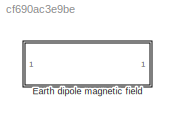
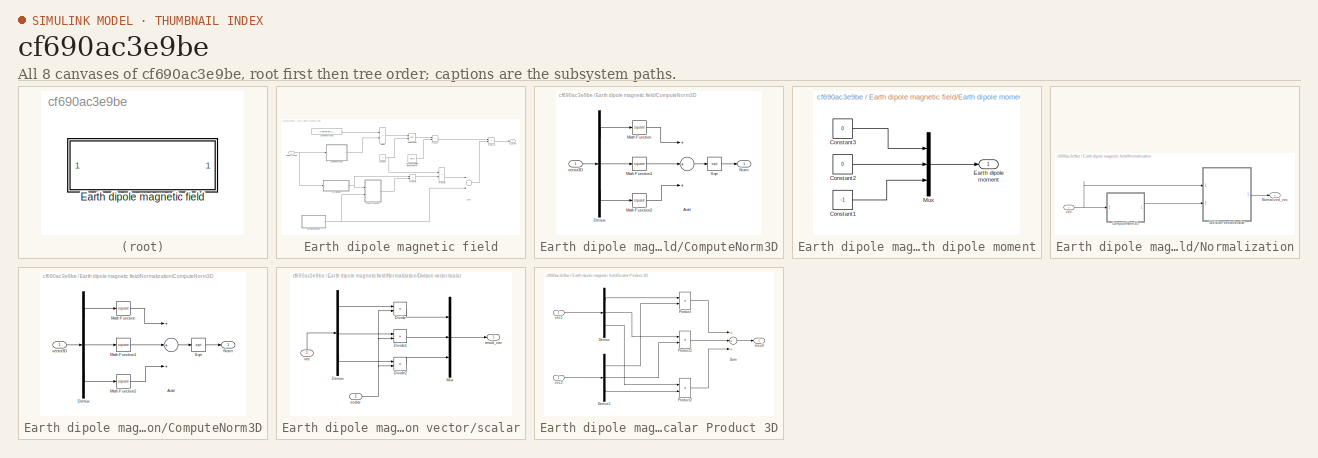
[diagram: thumbnail index - all 8 canvases of the model, root first then tree order]
MODEL slx_cf690ac3e9be
KIND library
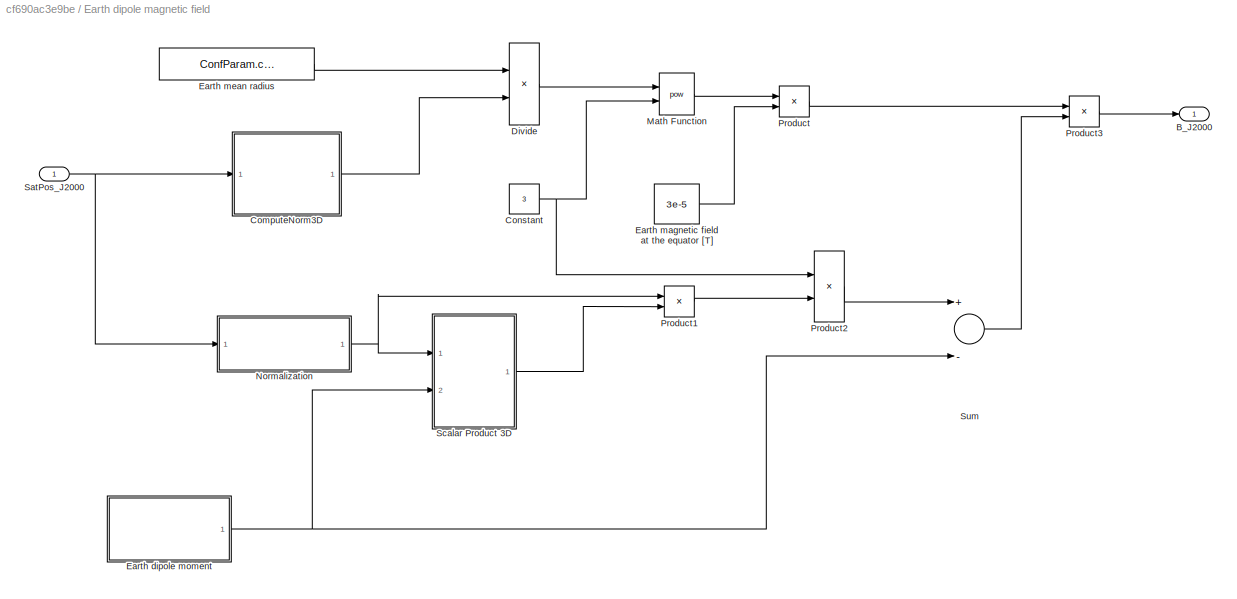
BLOCK [SubSystem] Earth dipole magnetic field
  Ports = [1, 1]
  RequestExecContextInheritance = off
BLOCK [Outport] Earth dipole magnetic field/B_J2000
  IconDisplay = Port number
BLOCK [SubSystem] Earth dipole magnetic field/ComputeNorm3D
  Ports = [1, 1]
  RequestExecContextInheritance = off
BLOCK [Sum] Earth dipole magnetic field/ComputeNorm3D/Add
  InputSameDT = off
  Inputs = +++
  OutDataTypeStr = Inherit: Inherit via internal rule
  Ports = [3, 1]
  SaturateOnIntegerOverflow = off
BLOCK [Demux] Earth dipole magnetic field/ComputeNorm3D/Demux
  DisplayOption = bar
  Outputs = 3
  Ports = [1, 3]
BLOCK [Math] Earth dipole magnetic field/ComputeNorm3D/Math Function
  Operator = square
  Ports = [1, 1]
BLOCK [Math] Earth dipole magnetic field/ComputeNorm3D/Math Function1
  Operator = square
  Ports = [1, 1]
BLOCK [Math] Earth dipole magnetic field/ComputeNorm3D/Math Function2
  Operator = square
  Ports = [1, 1]
BLOCK [Outport] Earth dipole magnetic field/ComputeNorm3D/Norm
  IconDisplay = Port number
BLOCK [Sqrt] Earth dipole magnetic field/ComputeNorm3D/Sqrt
BLOCK [Inport] Earth dipole magnetic field/ComputeNorm3D/vector3D
  IconDisplay = Port number
BLOCK [Constant] Earth dipole magnetic field/Constant
  Value = 3
BLOCK [Product] Earth dipole magnetic field/Divide
  InputSameDT = off
  Inputs = */
  OutDataTypeStr = Inherit: Inherit via internal rule
  Ports = [2, 1]
  RndMeth = Floor
  SaturateOnIntegerOverflow = off
BLOCK [SubSystem] Earth dipole magnetic field/Earth dipole moment
  Ports = [0, 1]
  RequestExecContextInheritance = off
BLOCK [Constant] Earth dipole magnetic field/Earth dipole moment/Constant1
  Value = -1
BLOCK [Constant] Earth dipole magnetic field/Earth dipole moment/Constant2
  Value = 0
BLOCK [Constant] Earth dipole magnetic field/Earth dipole moment/Constant3
  Value = 0
BLOCK [Outport] Earth dipole magnetic field/Earth dipole moment/Earth dipole moment
  IconDisplay = Port number
BLOCK [Mux] Earth dipole magnetic field/Earth dipole moment/Mux
  DisplayOption = bar
  Inputs = 3
  Ports = [3, 1]
BLOCK [Constant] Earth dipole magnetic field/Earth magnetic field at the equator [T]
  Value = 3e-5
BLOCK [Constant] Earth dipole magnetic field/Earth mean radius
  Value = ConfParam.confConst.EarthR
BLOCK [Math] Earth dipole magnetic field/Math Function
  Operator = pow
  Ports = [2, 1]
BLOCK [SubSystem] Earth dipole magnetic field/Normalization
  Ports = [1, 1]
  RequestExecContextInheritance = off
BLOCK [SubSystem] Earth dipole magnetic field/Normalization/ComputeNorm3D
  Ports = [1, 1]
  RequestExecContextInheritance = off
BLOCK [Sum] Earth dipole magnetic field/Normalization/ComputeNorm3D/Add
  InputSameDT = off
  Inputs = +++
  OutDataTypeStr = Inherit: Inherit via internal rule
  Ports = [3, 1]
  SaturateOnIntegerOverflow = off
BLOCK [Demux] Earth dipole magnetic field/Normalization/ComputeNorm3D/Demux
  DisplayOption = bar
  Outputs = 3
  Ports = [1, 3]
BLOCK [Math] Earth dipole magnetic field/Normalization/ComputeNorm3D/Math Function
  Operator = square
  Ports = [1, 1]
BLOCK [Math] Earth dipole magnetic field/Normalization/ComputeNorm3D/Math Function1
  Operator = square
  Ports = [1, 1]
BLOCK [Math] Earth dipole magnetic field/Normalization/ComputeNorm3D/Math Function2
  Operator = square
  Ports = [1, 1]
BLOCK [Outport] Earth dipole magnetic field/Normalization/ComputeNorm3D/Norm
  IconDisplay = Port number
BLOCK [Sqrt] Earth dipole magnetic field/Normalization/ComputeNorm3D/Sqrt
BLOCK [Inport] Earth dipole magnetic field/Normalization/ComputeNorm3D/vector3D
  IconDisplay = Port number
BLOCK [SubSystem] Earth dipole magnetic field/Normalization/Division vector//scalar
  Ports = [2, 1]
  RequestExecContextInheritance = off
BLOCK [Demux] Earth dipole magnetic field/Normalization/Division vector//scalar/Demux
  DisplayOption = bar
  Outputs = 3
  Ports = [1, 3]
BLOCK [Product] Earth dipole magnetic field/Normalization/Division vector//scalar/Divide
  InputSameDT = off
  Inputs = */
  OutDataTypeStr = Inherit: Inherit via internal rule
  Ports = [2, 1]
  RndMeth = Floor
  SaturateOnIntegerOverflow = off
BLOCK [Product] Earth dipole magnetic field/Normalization/Division vector//scalar/Divide1
  InputSameDT = off
  Inputs = */
  OutDataTypeStr = Inherit: Inherit via internal rule
  Ports = [2, 1]
  RndMeth = Floor
  SaturateOnIntegerOverflow = off
BLOCK [Product] Earth dipole magnetic field/Normalization/Division vector//scalar/Divide2
  InputSameDT = off
  Inputs = */
  OutDataTypeStr = Inherit: Inherit via internal rule
  Ports = [2, 1]
  RndMeth = Floor
  SaturateOnIntegerOverflow = off
BLOCK [Mux] Earth dipole magnetic field/Normalization/Division vector//scalar/Mux
  DisplayOption = bar
  Inputs = 3
  Ports = [3, 1]
BLOCK [Outport] Earth dipole magnetic field/Normalization/Division vector//scalar/result_vec
  IconDisplay = Port number
BLOCK [Inport] Earth dipole magnetic field/Normalization/Division vector//scalar/scalar
  IconDisplay = Port number
  Port = 2
BLOCK [Inport] Earth dipole magnetic field/Normalization/Division vector//scalar/vec
  IconDisplay = Port number
BLOCK [Outport] Earth dipole magnetic field/Normalization/Normalized_vec
  IconDisplay = Port number
BLOCK [Inport] Earth dipole magnetic field/Normalization/vec
  IconDisplay = Port number
BLOCK [Product] Earth dipole magnetic field/Product
  InputSameDT = off
  OutDataTypeStr = Inherit: Inherit via internal rule
  Ports = [2, 1]
  RndMeth = Floor
  SaturateOnIntegerOverflow = off
BLOCK [Product] Earth dipole magnetic field/Product1
  InputSameDT = off
  OutDataTypeStr = Inherit: Inherit via internal rule
  Ports = [2, 1]
  RndMeth = Floor
  SaturateOnIntegerOverflow = off
BLOCK [Product] Earth dipole magnetic field/Product2
  InputSameDT = off
  OutDataTypeStr = Inherit: Inherit via internal rule
  Ports = [2, 1]
  RndMeth = Floor
  SaturateOnIntegerOverflow = off
BLOCK [Product] Earth dipole magnetic field/Product3
  InputSameDT = off
  OutDataTypeStr = Inherit: Inherit via internal rule
  Ports = [2, 1]
  RndMeth = Floor
  SaturateOnIntegerOverflow = off
BLOCK [Inport] Earth dipole magnetic field/SatPos_J2000
  IconDisplay = Port number
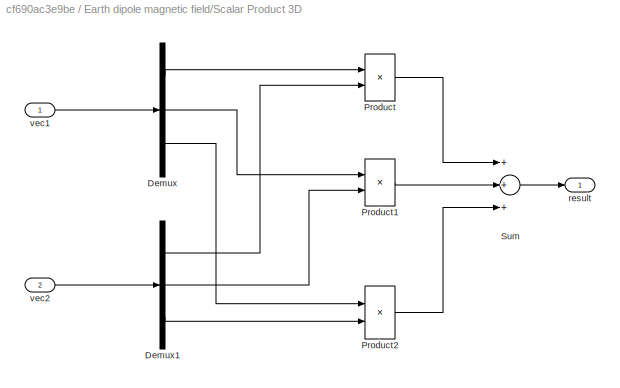
BLOCK [SubSystem] Earth dipole magnetic field/Scalar Product 3D
  Ports = [2, 1]
  RequestExecContextInheritance = off
BLOCK [Demux] Earth dipole magnetic field/Scalar Product 3D/Demux
  DisplayOption = bar
  Outputs = 3
  Ports = [1, 3]
BLOCK [Demux] Earth dipole magnetic field/Scalar Product 3D/Demux1
  DisplayOption = bar
  Outputs = 3
  Ports = [1, 3]
BLOCK [Product] Earth dipole magnetic field/Scalar Product 3D/Product
  InputSameDT = off
  OutDataTypeStr = Inherit: Inherit via internal rule
  Ports = [2, 1]
  RndMeth = Floor
  SaturateOnIntegerOverflow = off
BLOCK [Product] Earth dipole magnetic field/Scalar Product 3D/Product1
  InputSameDT = off
  OutDataTypeStr = Inherit: Inherit via internal rule
  Ports = [2, 1]
  RndMeth = Floor
  SaturateOnIntegerOverflow = off
BLOCK [Product] Earth dipole magnetic field/Scalar Product 3D/Product2
  InputSameDT = off
  OutDataTypeStr = Inherit: Inherit via internal rule
  Ports = [2, 1]
  RndMeth = Floor
  SaturateOnIntegerOverflow = off
BLOCK [Sum] Earth dipole magnetic field/Scalar Product 3D/Sum
  InputSameDT = off
  Inputs = +++
  OutDataTypeStr = Inherit: Inherit via internal rule
  Ports = [3, 1]
  SaturateOnIntegerOverflow = off
BLOCK [Outport] Earth dipole magnetic field/Scalar Product 3D/result
  IconDisplay = Port number
BLOCK [Inport] Earth dipole magnetic field/Scalar Product 3D/vec1
  IconDisplay = Port number
BLOCK [Inport] Earth dipole magnetic field/Scalar Product 3D/vec2
  IconDisplay = Port number
  Port = 2
BLOCK [Sum] Earth dipole magnetic field/Sum
  InputSameDT = off
  Inputs = +-
  OutDataTypeStr = Inherit: Inherit via internal rule
  Ports = [2, 1]
  SaturateOnIntegerOverflow = off
LINE Earth dipole magnetic field/ComputeNorm3D/Add:1 -> Earth dipole magnetic field/ComputeNorm3D/Sqrt:1
LINE Earth dipole magnetic field/ComputeNorm3D/Demux:1 -> Earth dipole magnetic field/ComputeNorm3D/Math Function:1
LINE Earth dipole magnetic field/ComputeNorm3D/Demux:2 -> Earth dipole magnetic field/ComputeNorm3D/Math Function1:1
LINE Earth dipole magnetic field/ComputeNorm3D/Demux:3 -> Earth dipole magnetic field/ComputeNorm3D/Math Function2:1
LINE Earth dipole magnetic field/ComputeNorm3D/Math Function1:1 -> Earth dipole magnetic field/ComputeNorm3D/Add:2
LINE Earth dipole magnetic field/ComputeNorm3D/Math Function2:1 -> Earth dipole magnetic field/ComputeNorm3D/Add:3
LINE Earth dipole magnetic field/ComputeNorm3D/Math Function:1 -> Earth dipole magnetic field/ComputeNorm3D/Add:1
LINE Earth dipole magnetic field/ComputeNorm3D/Sqrt:1 -> Earth dipole magnetic field/ComputeNorm3D/Norm:1
LINE Earth dipole magnetic field/ComputeNorm3D/vector3D:1 -> Earth dipole magnetic field/ComputeNorm3D/Demux:1
LINE Earth dipole magnetic field/ComputeNorm3D:1 -> Earth dipole magnetic field/Divide:2
NET Earth dipole magnetic field/Constant:1 -> Earth dipole magnetic field/Math Function:2, Earth dipole magnetic field/Product2:1
LINE Earth dipole magnetic field/Divide:1 -> Earth dipole magnetic field/Math Function:1
LINE Earth dipole magnetic field/Earth dipole moment/Constant1:1 -> Earth dipole magnetic field/Earth dipole moment/Mux:3
LINE Earth dipole magnetic field/Earth dipole moment/Constant2:1 -> Earth dipole magnetic field/Earth dipole moment/Mux:2
LINE Earth dipole magnetic field/Earth dipole moment/Constant3:1 -> Earth dipole magnetic field/Earth dipole moment/Mux:1
LINE Earth dipole magnetic field/Earth dipole moment/Mux:1 -> Earth dipole magnetic field/Earth dipole moment/Earth dipole moment:1
NET Earth dipole magnetic field/Earth dipole moment:1 -> Earth dipole magnetic field/Scalar Product 3D:2, Earth dipole magnetic field/Sum:2
LINE Earth dipole magnetic field/Earth magnetic field at the equator [T]:1 -> Earth dipole magnetic field/Product:2
LINE Earth dipole magnetic field/Earth mean radius:1 -> Earth dipole magnetic field/Divide:1
LINE Earth dipole magnetic field/Math Function:1 -> Earth dipole magnetic field/Product:1
LINE Earth dipole magnetic field/Normalization/ComputeNorm3D/Add:1 -> Earth dipole magnetic field/Normalization/ComputeNorm3D/Sqrt:1
LINE Earth dipole magnetic field/Normalization/ComputeNorm3D/Demux:1 -> Earth dipole magnetic field/Normalization/ComputeNorm3D/Math Function:1
LINE Earth dipole magnetic field/Normalization/ComputeNorm3D/Demux:2 -> Earth dipole magnetic field/Normalization/ComputeNorm3D/Math Function1:1
LINE Earth dipole magnetic field/Normalization/ComputeNorm3D/Demux:3 -> Earth dipole magnetic field/Normalization/ComputeNorm3D/Math Function2:1
LINE Earth dipole magnetic field/Normalization/ComputeNorm3D/Math Function1:1 -> Earth dipole magnetic field/Normalization/ComputeNorm3D/Add:2
LINE Earth dipole magnetic field/Normalization/ComputeNorm3D/Math Function2:1 -> Earth dipole magnetic field/Normalization/ComputeNorm3D/Add:3
LINE Earth dipole magnetic field/Normalization/ComputeNorm3D/Math Function:1 -> Earth dipole magnetic field/Normalization/ComputeNorm3D/Add:1
LINE Earth dipole magnetic field/Normalization/ComputeNorm3D/Sqrt:1 -> Earth dipole magnetic field/Normalization/ComputeNorm3D/Norm:1
LINE Earth dipole magnetic field/Normalization/ComputeNorm3D/vector3D:1 -> Earth dipole magnetic field/Normalization/ComputeNorm3D/Demux:1
LINE Earth dipole magnetic field/Normalization/ComputeNorm3D:1 -> Earth dipole magnetic field/Normalization/Division vector//scalar:2
LINE Earth dipole magnetic field/Normalization/Division vector//scalar/Demux:1 -> Earth dipole magnetic field/Normalization/Division vector//scalar/Divide:1
LINE Earth dipole magnetic field/Normalization/Division vector//scalar/Demux:2 -> Earth dipole magnetic field/Normalization/Division vector//scalar/Divide1:1
LINE Earth dipole magnetic field/Normalization/Division vector//scalar/Demux:3 -> Earth dipole magnetic field/Normalization/Division vector//scalar/Divide2:1
LINE Earth dipole magnetic field/Normalization/Division vector//scalar/Divide1:1 -> Earth dipole magnetic field/Normalization/Division vector//scalar/Mux:2
LINE Earth dipole magnetic field/Normalization/Division vector//scalar/Divide2:1 -> Earth dipole magnetic field/Normalization/Division vector//scalar/Mux:3
LINE Earth dipole magnetic field/Normalization/Division vector//scalar/Divide:1 -> Earth dipole magnetic field/Normalization/Division vector//scalar/Mux:1
LINE Earth dipole magnetic field/Normalization/Division vector//scalar/Mux:1 -> Earth dipole magnetic field/Normalization/Division vector//scalar/result_vec:1
NET Earth dipole magnetic field/Normalization/Division vector//scalar/scalar:1 -> Earth dipole magnetic field/Normalization/Division vector//scalar/Divide1:2, Earth dipole magnetic field/Normalization/Division vector//scalar/Divide2:2, Earth dipole magnetic field/Normalization/Division vector//scalar/Divide:2
LINE Earth dipole magnetic field/Normalization/Division vector//scalar/vec:1 -> Earth dipole magnetic field/Normalization/Division vector//scalar/Demux:1
LINE Earth dipole magnetic field/Normalization/Division vector//scalar:1 -> Earth dipole magnetic field/Normalization/Normalized_vec:1
NET Earth dipole magnetic field/Normalization/vec:1 -> Earth dipole magnetic field/Normalization/ComputeNorm3D:1, Earth dipole magnetic field/Normalization/Division vector//scalar:1
NET Earth dipole magnetic field/Normalization:1 -> Earth dipole magnetic field/Product1:1, Earth dipole magnetic field/Scalar Product 3D:1
LINE Earth dipole magnetic field/Product1:1 -> Earth dipole magnetic field/Product2:2
LINE Earth dipole magnetic field/Product2:1 -> Earth dipole magnetic field/Sum:1
LINE Earth dipole magnetic field/Product3:1 -> Earth dipole magnetic field/B_J2000:1
LINE Earth dipole magnetic field/Product:1 -> Earth dipole magnetic field/Product3:1
NET Earth dipole magnetic field/SatPos_J2000:1 -> Earth dipole magnetic field/ComputeNorm3D:1, Earth dipole magnetic field/Normalization:1
LINE Earth dipole magnetic field/Scalar Product 3D/Demux1:1 -> Earth dipole magnetic field/Scalar Product 3D/Product:2
LINE Earth dipole magnetic field/Scalar Product 3D/Demux1:2 -> Earth dipole magnetic field/Scalar Product 3D/Product1:2
LINE Earth dipole magnetic field/Scalar Product 3D/Demux1:3 -> Earth dipole magnetic field/Scalar Product 3D/Product2:2
LINE Earth dipole magnetic field/Scalar Product 3D/Demux:1 -> Earth dipole magnetic field/Scalar Product 3D/Product:1
LINE Earth dipole magnetic field/Scalar Product 3D/Demux:2 -> Earth dipole magnetic field/Scalar Product 3D/Product1:1
LINE Earth dipole magnetic field/Scalar Product 3D/Demux:3 -> Earth dipole magnetic field/Scalar Product 3D/Product2:1
LINE Earth dipole magnetic field/Scalar Product 3D/Product1:1 -> Earth dipole magnetic field/Scalar Product 3D/Sum:2
LINE Earth dipole magnetic field/Scalar Product 3D/Product2:1 -> Earth dipole magnetic field/Scalar Product 3D/Sum:3
LINE Earth dipole magnetic field/Scalar Product 3D/Product:1 -> Earth dipole magnetic field/Scalar Product 3D/Sum:1
LINE Earth dipole magnetic field/Scalar Product 3D/Sum:1 -> Earth dipole magnetic field/Scalar Product 3D/result:1
LINE Earth dipole magnetic field/Scalar Product 3D/vec1:1 -> Earth dipole magnetic field/Scalar Product 3D/Demux:1
LINE Earth dipole magnetic field/Scalar Product 3D/vec2:1 -> Earth dipole magnetic field/Scalar Product 3D/Demux1:1
LINE Earth dipole magnetic field/Scalar Product 3D:1 -> Earth dipole magnetic field/Product1:2
LINE Earth dipole magnetic field/Sum:1 -> Earth dipole magnetic field/Product3:2
note: NET lines group one-source signal fan-out (src -> all destinations, sorted); 1:1 wires keep LINE
